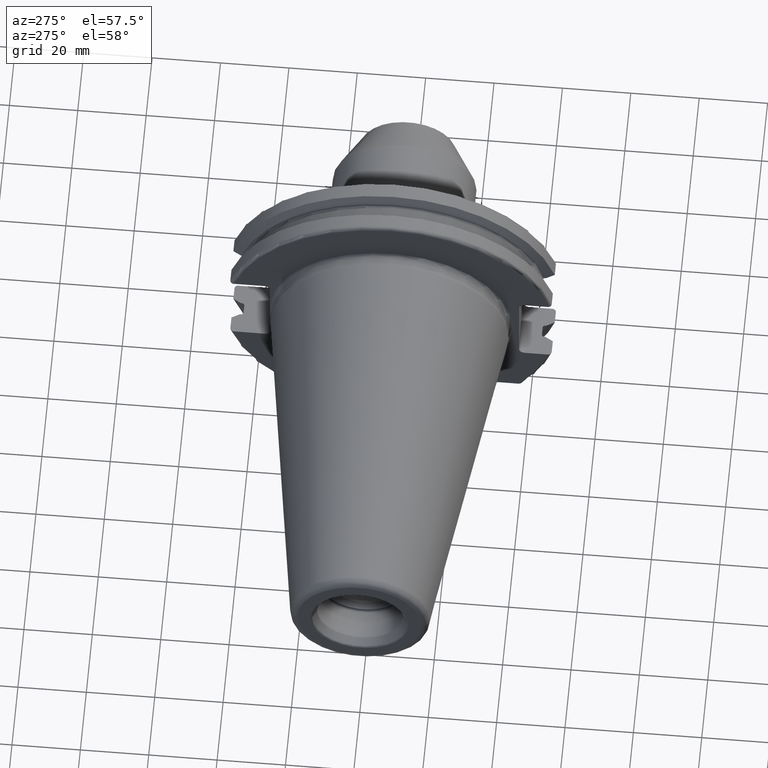
[diagram: clean part render]
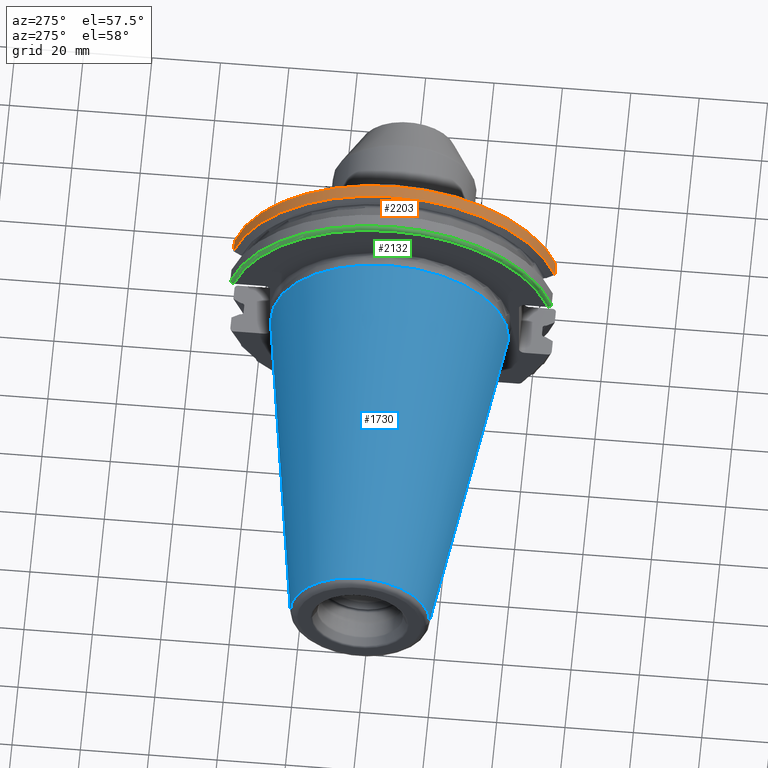
[diagram: same view with three faces highlighted in distinct colors, each labeled with its STEP entity id]
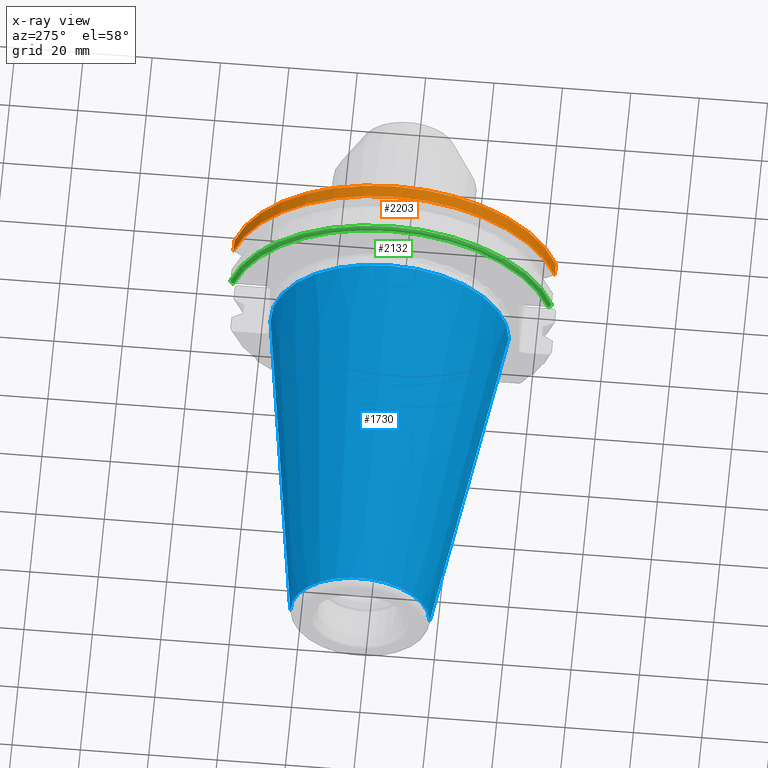
[diagram: x-ray of the same camera — body ghosted, the three highlighted faces saturated]
A machine part, auxiliary view with three faces highlighted in distinct colors.
The next image is the same camera in x-ray (body ghosted, the three faces saturated) — at least one of them is partly hidden behind the body in this view.
Their STEP definitions:

[orange] entity #2203 — the highlighted cylindrical surface (partial cylindrical patch) has radius 48.7375 mm, axis along (1, 0, 0).
#407=DIRECTION('',(1.E0,0.E0,0.E0));
#408=VECTOR('',#407,3.634621614173E0);
#409=CARTESIAN_POINT('',(1.441537838583E1,4.699929686974E1,1.29E1));
#410=LINE('',#409,#408);
#411=CARTESIAN_POINT('',(1.805E1,0.E0,0.E0));
#412=DIRECTION('',(1.E0,0.E0,0.E0));
#413=DIRECTION('',(0.E0,9.643354064066E-1,2.646832521159E-1));
#414=AXIS2_PLACEMENT_3D('',#411,#412,#413);
#416=DIRECTION('',(1.E0,0.E0,0.E0));
#417=VECTOR('',#416,3.634621614173E0);
#418=CARTESIAN_POINT('',(1.441537838583E1,-4.699929686974E1,1.29E1));
#419=LINE('',#418,#417);
#420=CARTESIAN_POINT('',(1.441537838583E1,0.E0,0.E0));
#421=DIRECTION('',(1.E0,0.E0,0.E0));
#422=DIRECTION('',(0.E0,9.643354064066E-1,2.646832521159E-1));
#423=AXIS2_PLACEMENT_3D('',#420,#421,#422);
#584=CARTESIAN_POINT('',(1.441537838583E1,4.699929686974E1,1.29E1));
#596=CARTESIAN_POINT('',(1.441537838583E1,-4.699929686974E1,1.29E1));
#1506=VERTEX_POINT('',#584);
#1507=VERTEX_POINT('',#596);
#1522=CARTESIAN_POINT('',(1.805E1,4.699929686974E1,1.29E1));
#1523=VERTEX_POINT('',#1522);
#1526=CARTESIAN_POINT('',(1.805E1,-4.699929686974E1,1.29E1));
#1527=VERTEX_POINT('',#1526);
#2191=CARTESIAN_POINT('',(-1.076325E2,0.E0,0.E0));
#2192=DIRECTION('',(1.E0,0.E0,0.E0));
#2193=DIRECTION('',(0.E0,-1.E0,0.E0));
#2194=AXIS2_PLACEMENT_3D('',#2191,#2192,#2193);
#2195=CYLINDRICAL_SURFACE('',#2194,4.87375E1);
#2196=ORIENTED_EDGE('',*,*,#2142,.T.);
#2197=ORIENTED_EDGE('',*,*,#2173,.T.);
#2198=ORIENTED_EDGE('',*,*,#2099,.F.);
#2200=ORIENTED_EDGE('',*,*,#2199,.F.);
#2201=EDGE_LOOP('',(#2196,#2197,#2198,#2200));
#2202=FACE_OUTER_BOUND('',#2201,.F.);
#2203=ADVANCED_FACE('',(#2202),#2195,.T.);
#415=CIRCLE('',#414,4.87375E1);
#424=CIRCLE('',#423,4.87375E1);
#2099=EDGE_CURVE('',#1507,#1527,#419,.T.);
#2142=EDGE_CURVE('',#1506,#1523,#410,.T.);
#2173=EDGE_CURVE('',#1523,#1527,#415,.T.);
#2199=EDGE_CURVE('',#1506,#1507,#424,.T.);

[blue] entity #1730 — the highlighted conical surface has half-angle 8.298 deg.
#37=CARTESIAN_POINT('',(-9.967471700563E1,0.E0,0.E0));
#38=DIRECTION('',(1.E0,0.E0,0.E0));
#39=DIRECTION('',(0.E0,1.E0,0.E0));
#40=AXIS2_PLACEMENT_3D('',#37,#38,#39);
#42=CARTESIAN_POINT('',(-4.896823332305E-1,0.E0,0.E0));
#43=DIRECTION('',(1.E0,0.E0,0.E0));
#44=DIRECTION('',(0.E0,1.E0,0.E0));
#45=AXIS2_PLACEMENT_3D('',#42,#43,#44);
#47=DIRECTION('',(-9.895312636440E-1,-1.443186691705E-1,0.E0));
#48=VECTOR('',#47,1.002343617797E2);
#49=CARTESIAN_POINT('',(-4.896823332305E-1,3.485358204157E1,0.E0));
#50=LINE('',#49,#48);
#51=DIRECTION('',(-9.895312636440E-1,1.443186691705E-1,0.E0));
#52=VECTOR('',#51,1.002343617797E2);
#53=CARTESIAN_POINT('',(-4.896823332305E-1,-3.485358204157E1,0.E0));
#54=LINE('',#53,#52);
#1398=CARTESIAN_POINT('',(-9.967471700563E1,2.038789234437E1,0.E0));
#1400=VERTEX_POINT('',#1398);
#1402=CARTESIAN_POINT('',(-9.967471700563E1,-2.038789234437E1,0.E0));
#1404=VERTEX_POINT('',#1402);
#1466=CARTESIAN_POINT('',(-4.896823332305E-1,3.485358204157E1,0.E0));
#1467=VERTEX_POINT('',#1466);
#1468=CARTESIAN_POINT('',(-4.896823332305E-1,-3.485358204157E1,0.E0));
#1469=VERTEX_POINT('',#1468);
#1716=CARTESIAN_POINT('',(-5.008219966943E1,0.E0,0.E0));
#1717=DIRECTION('',(1.E0,0.E0,0.E0));
#1718=DIRECTION('',(0.E0,-1.E0,0.E0));
#1719=AXIS2_PLACEMENT_3D('',#1716,#1717,#1718);
#1720=CONICAL_SURFACE('',#1719,2.762073719297E1,8.297826828206E0);
#1722=ORIENTED_EDGE('',*,*,#1721,.F.);
#1724=ORIENTED_EDGE('',*,*,#1723,.T.);
#1726=ORIENTED_EDGE('',*,*,#1725,.T.);
#1727=ORIENTED_EDGE('',*,*,#1709,.F.);
#1728=EDGE_LOOP('',(#1722,#1724,#1726,#1727));
#1729=FACE_OUTER_BOUND('',#1728,.F.);
#1730=ADVANCED_FACE('',(#1729),#1720,.T.);
#41=CIRCLE('',#40,2.038789234437E1);
#46=CIRCLE('',#45,3.485358204157E1);
#1709=EDGE_CURVE('',#1400,#1404,#41,.T.);
#1721=EDGE_CURVE('',#1467,#1400,#50,.T.);
#1723=EDGE_CURVE('',#1467,#1469,#46,.T.);
#1725=EDGE_CURVE('',#1469,#1404,#54,.T.);

[green] entity #2132 — the highlighted toroidal blend (fillet) surface has major radius 47.7375 mm and minor (blend) radius 1 mm.
#317=CARTESIAN_POINT('',(3.2E0,0.E0,0.E0));
#318=DIRECTION('',(1.E0,0.E0,0.E0));
#319=DIRECTION('',(0.E0,9.627964123359E-1,2.702278083268E-1));
#320=AXIS2_PLACEMENT_3D('',#317,#318,#319);
#336=CARTESIAN_POINT('',(4.2E0,4.699929686974E1,1.29E1));
#337=CARTESIAN_POINT('',(4.123252333679E0,4.699929686974E1,1.29E1));
#338=CARTESIAN_POINT('',(3.974283567116E0,4.698148666181E1,1.29E1));
#339=CARTESIAN_POINT('',(3.759372583830E0,4.690310671304E1,1.29E1));
#340=CARTESIAN_POINT('',(3.568100173391E0,4.677722228850E1,1.29E1));
#341=CARTESIAN_POINT('',(3.409493655806E0,4.661135458292E1,1.29E1));
#342=CARTESIAN_POINT('',(3.290442678355E0,4.641353235870E1,1.29E1));
#343=CARTESIAN_POINT('',(3.216801719921E0,4.619318544857E1,1.29E1));
#344=CARTESIAN_POINT('',(3.2E0,4.604023191736E1,1.29E1));
#345=CARTESIAN_POINT('',(3.2E0,4.596149373389E1,1.29E1));
#347=CARTESIAN_POINT('',(4.2E0,0.E0,0.E0));
#348=DIRECTION('',(1.E0,0.E0,0.E0));
#349=DIRECTION('',(0.E0,9.643354064066E-1,2.646832521159E-1));
#350=AXIS2_PLACEMENT_3D('',#347,#348,#349);
#352=CARTESIAN_POINT('',(3.2E0,-4.596149373389E1,1.29E1));
#353=CARTESIAN_POINT('',(3.2E0,-4.604026443227E1,1.29E1));
#354=CARTESIAN_POINT('',(3.216813255287E0,-4.619328239852E1,1.29E1));
#355=CARTESIAN_POINT('',(3.290538328370E0,-4.641376542139E1,1.29E1));
#356=CARTESIAN_POINT('',(3.409705660893E0,-4.661163928454E1,1.29E1));
#357=CARTESIAN_POINT('',(3.568375595419E0,-4.677744698912E1,1.29E1));
#358=CARTESIAN_POINT('',(3.759602935675E0,-4.690321007119E1,1.29E1));
#359=CARTESIAN_POINT('',(3.974378910530E0,-4.698149887214E1,1.29E1));
#360=CARTESIAN_POINT('',(4.123284460641E0,-4.699929686974E1,1.29E1));
#361=CARTESIAN_POINT('',(4.2E0,-4.699929686974E1,1.29E1));
#1520=CARTESIAN_POINT('',(4.2E0,4.699929686974E1,1.29E1));
#1521=VERTEX_POINT('',#1520);
#1524=CARTESIAN_POINT('',(4.2E0,-4.699929686974E1,1.29E1));
#1525=VERTEX_POINT('',#1524);
#1541=VERTEX_POINT('',#345);
#1542=VERTEX_POINT('',#352);
#2119=CARTESIAN_POINT('',(4.2E0,0.E0,0.E0));
#2120=DIRECTION('',(1.E0,0.E0,0.E0));
#2121=DIRECTION('',(0.E0,-1.E0,0.E0));
#2122=AXIS2_PLACEMENT_3D('',#2119,#2120,#2121);
#2123=TOROIDAL_SURFACE('',#2122,4.77375E1,1.E0);
#2125=ORIENTED_EDGE('',*,*,#2124,.F.);
#2127=ORIENTED_EDGE('',*,*,#2126,.T.);
#2128=ORIENTED_EDGE('',*,*,#2081,.F.);
#2129=ORIENTED_EDGE('',*,*,#2068,.F.);
#2130=EDGE_LOOP('',(#2125,#2127,#2128,#2129));
#2131=FACE_OUTER_BOUND('',#2130,.F.);
#2132=ADVANCED_FACE('',(#2131),#2123,.T.);
#321=CIRCLE('',#320,4.77375E1);
#346=B_SPLINE_CURVE_WITH_KNOTS('',3,(#336,#337,#338,#339,#340,#341,#342,#343,
#344,#345),.UNSPECIFIED.,.F.,.F.,(4,1,1,1,1,1,1,4),(0.E0,1.428571428571E-1,
2.857142857143E-1,4.285714285714E-1,5.714285714286E-1,7.142857142857E-1,
8.571428571429E-1,1.E0),.UNSPECIFIED.);
#351=CIRCLE('',#350,4.87375E1);
#362=B_SPLINE_CURVE_WITH_KNOTS('',3,(#352,#353,#354,#355,#356,#357,#358,#359,
#360,#361),.UNSPECIFIED.,.F.,.F.,(4,1,1,1,1,1,1,4),(0.E0,1.428571428571E-1,
2.857142857143E-1,4.285714285714E-1,5.714285714286E-1,7.142857142857E-1,
8.571428571429E-1,1.E0),.UNSPECIFIED.);
#2068=EDGE_CURVE('',#1541,#1542,#321,.T.);
#2081=EDGE_CURVE('',#1542,#1525,#362,.T.);
#2124=EDGE_CURVE('',#1521,#1541,#346,.T.);
#2126=EDGE_CURVE('',#1521,#1525,#351,.T.);